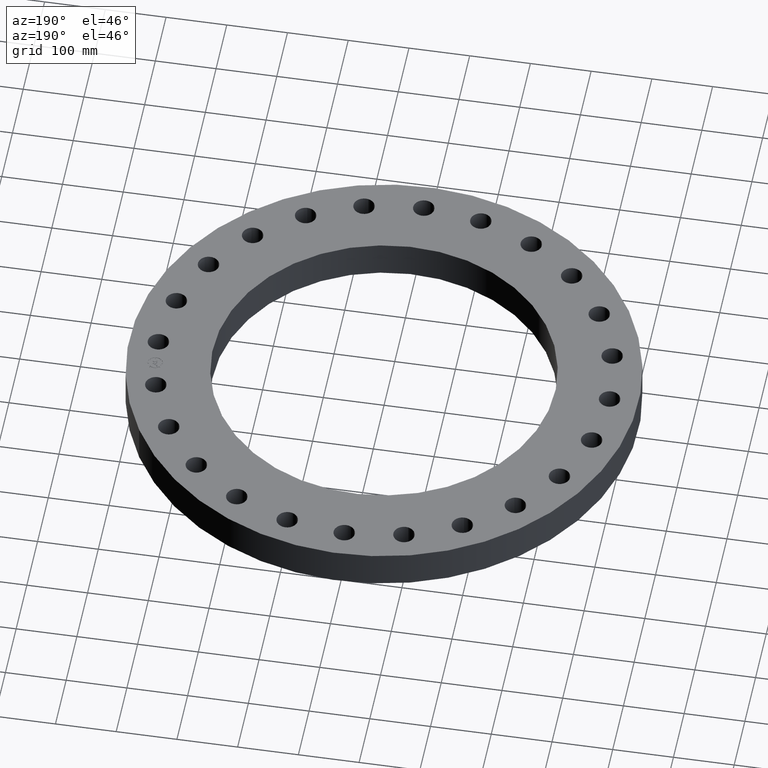
[diagram: clean part render]
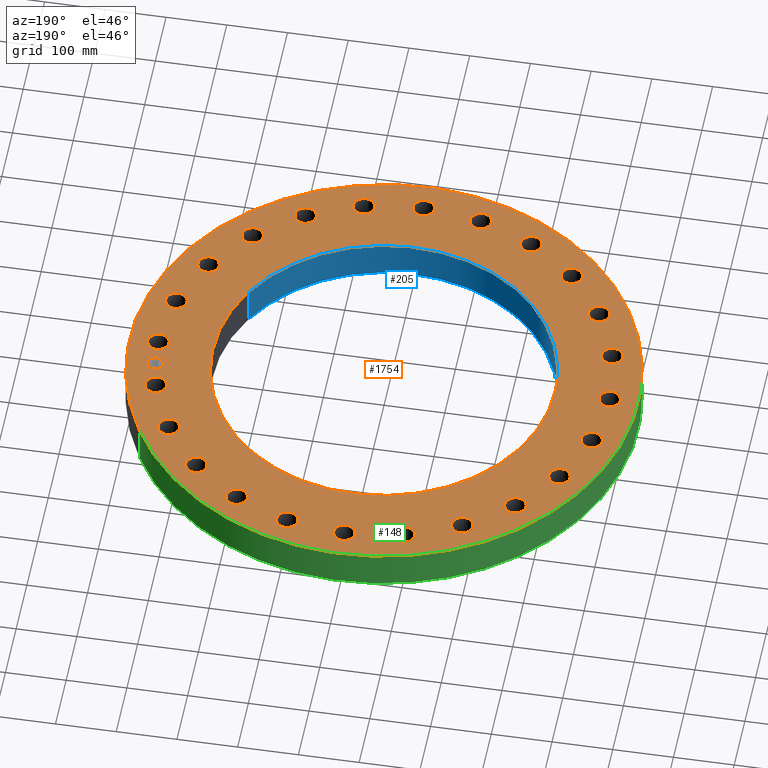
[diagram: same view with three faces highlighted in distinct colors, each labeled with its STEP entity id]
A machine part, auxiliary view with three faces highlighted in distinct colors.
Their STEP definitions:

[orange] entity #1754 — the highlighted planar face has unit normal (0, 0, 1).
#65=AXIS2_PLACEMENT_3D('Circle Axis2P3D',#63,#64,$) ;
#82=AXIS2_PLACEMENT_3D('Circle Axis2P3D',#80,#81,$) ;
#108=AXIS2_PLACEMENT_3D('Circle Axis2P3D',#106,#107,$) ;
#134=AXIS2_PLACEMENT_3D('Circle Axis2P3D',#132,#133,$) ;
#179=AXIS2_PLACEMENT_3D('Circle Axis2P3D',#177,#178,$) ;
#196=AXIS2_PLACEMENT_3D('Circle Axis2P3D',#194,#195,$) ;
#659=AXIS2_PLACEMENT_3D('Circle Axis2P3D',#657,#658,$) ;
#671=AXIS2_PLACEMENT_3D('Circle Axis2P3D',#669,#670,$) ;
#702=AXIS2_PLACEMENT_3D('Circle Axis2P3D',#700,#701,$) ;
#714=AXIS2_PLACEMENT_3D('Circle Axis2P3D',#712,#713,$) ;
#745=AXIS2_PLACEMENT_3D('Circle Axis2P3D',#743,#744,$) ;
#757=AXIS2_PLACEMENT_3D('Circle Axis2P3D',#755,#756,$) ;
#788=AXIS2_PLACEMENT_3D('Circle Axis2P3D',#786,#787,$) ;
#800=AXIS2_PLACEMENT_3D('Circle Axis2P3D',#798,#799,$) ;
#831=AXIS2_PLACEMENT_3D('Circle Axis2P3D',#829,#830,$) ;
#843=AXIS2_PLACEMENT_3D('Circle Axis2P3D',#841,#842,$) ;
#874=AXIS2_PLACEMENT_3D('Circle Axis2P3D',#872,#873,$) ;
#886=AXIS2_PLACEMENT_3D('Circle Axis2P3D',#884,#885,$) ;
#917=AXIS2_PLACEMENT_3D('Circle Axis2P3D',#915,#916,$) ;
#929=AXIS2_PLACEMENT_3D('Circle Axis2P3D',#927,#928,$) ;
#960=AXIS2_PLACEMENT_3D('Circle Axis2P3D',#958,#959,$) ;
#972=AXIS2_PLACEMENT_3D('Circle Axis2P3D',#970,#971,$) ;
#1003=AXIS2_PLACEMENT_3D('Circle Axis2P3D',#1001,#1002,$) ;
#1015=AXIS2_PLACEMENT_3D('Circle Axis2P3D',#1013,#1014,$) ;
#1046=AXIS2_PLACEMENT_3D('Circle Axis2P3D',#1044,#1045,$) ;
#1058=AXIS2_PLACEMENT_3D('Circle Axis2P3D',#1056,#1057,$) ;
#1089=AXIS2_PLACEMENT_3D('Circle Axis2P3D',#1087,#1088,$) ;
#1101=AXIS2_PLACEMENT_3D('Circle Axis2P3D',#1099,#1100,$) ;
#1132=AXIS2_PLACEMENT_3D('Circle Axis2P3D',#1130,#1131,$) ;
#1144=AXIS2_PLACEMENT_3D('Circle Axis2P3D',#1142,#1143,$) ;
#1175=AXIS2_PLACEMENT_3D('Circle Axis2P3D',#1173,#1174,$) ;
#1187=AXIS2_PLACEMENT_3D('Circle Axis2P3D',#1185,#1186,$) ;
#1218=AXIS2_PLACEMENT_3D('Circle Axis2P3D',#1216,#1217,$) ;
#1230=AXIS2_PLACEMENT_3D('Circle Axis2P3D',#1228,#1229,$) ;
#1261=AXIS2_PLACEMENT_3D('Circle Axis2P3D',#1259,#1260,$) ;
#1273=AXIS2_PLACEMENT_3D('Circle Axis2P3D',#1271,#1272,$) ;
#1304=AXIS2_PLACEMENT_3D('Circle Axis2P3D',#1302,#1303,$) ;
#1316=AXIS2_PLACEMENT_3D('Circle Axis2P3D',#1314,#1315,$) ;
#1347=AXIS2_PLACEMENT_3D('Circle Axis2P3D',#1345,#1346,$) ;
#1359=AXIS2_PLACEMENT_3D('Circle Axis2P3D',#1357,#1358,$) ;
#1390=AXIS2_PLACEMENT_3D('Circle Axis2P3D',#1388,#1389,$) ;
#1402=AXIS2_PLACEMENT_3D('Circle Axis2P3D',#1400,#1401,$) ;
#1433=AXIS2_PLACEMENT_3D('Circle Axis2P3D',#1431,#1432,$) ;
#1445=AXIS2_PLACEMENT_3D('Circle Axis2P3D',#1443,#1444,$) ;
#1476=AXIS2_PLACEMENT_3D('Circle Axis2P3D',#1474,#1475,$) ;
#1488=AXIS2_PLACEMENT_3D('Circle Axis2P3D',#1486,#1487,$) ;
#1519=AXIS2_PLACEMENT_3D('Circle Axis2P3D',#1517,#1518,$) ;
#1531=AXIS2_PLACEMENT_3D('Circle Axis2P3D',#1529,#1530,$) ;
#1562=AXIS2_PLACEMENT_3D('Circle Axis2P3D',#1560,#1561,$) ;
#1574=AXIS2_PLACEMENT_3D('Circle Axis2P3D',#1572,#1573,$) ;
#1605=AXIS2_PLACEMENT_3D('Circle Axis2P3D',#1603,#1604,$) ;
#1617=AXIS2_PLACEMENT_3D('Circle Axis2P3D',#1615,#1616,$) ;
#1630=AXIS2_PLACEMENT_3D('Plane Axis2P3D',#1627,#1628,#1629) ;
#1738=AXIS2_PLACEMENT_3D('Circle Axis2P3D',#1736,#1737,$) ;
#1747=AXIS2_PLACEMENT_3D('Circle Axis2P3D',#1745,#1746,$) ;
#46=CARTESIAN_POINT('Vertex',(14.0216619888,0.329605057792,2.50000000001)) ;
#60=CARTESIAN_POINT('Vertex',(15.2283380114,-0.329605057792,2.50000000001)) ;
#63=CARTESIAN_POINT('Axis2P3D Location',(14.6250000001,0.,2.50000000001)) ;
#80=CARTESIAN_POINT('Axis2P3D Location',(14.6250000001,0.,2.50000000001)) ;
#103=CARTESIAN_POINT('Vertex',(14.4801122712,7.910521387,2.50000000001)) ;
#106=CARTESIAN_POINT('Axis2P3D Location',(0.,0.,2.50000000001)) ;
#110=CARTESIAN_POINT('Vertex',(-14.4801122712,-7.910521387,2.50000000001)) ;
#132=CARTESIAN_POINT('Axis2P3D Location',(0.,0.,2.50000000001)) ;
#160=CARTESIAN_POINT('Vertex',(-9.73677852421,5.31922635083,2.50000000001)) ;
#174=CARTESIAN_POINT('Vertex',(9.73677852421,-5.31922635083,2.50000000001)) ;
#177=CARTESIAN_POINT('Axis2P3D Location',(-6.64385432059E-016,-2.09805925913E-016,2.50000000001)) ;
#194=CARTESIAN_POINT('Axis2P3D Location',(-6.64385432059E-016,-2.09805925913E-016,2.50000000001)) ;
#647=CARTESIAN_POINT('Vertex',(13.4585773761,3.94744720448,2.50000000001)) ;
#654=CARTESIAN_POINT('Vertex',(14.794753043,3.6230098648,2.50000000001)) ;
#657=CARTESIAN_POINT('Axis2P3D Location',(14.1266652095,3.78522853464,2.50000000001)) ;
#669=CARTESIAN_POINT('Axis2P3D Location',(14.1266652095,3.78522853464,2.50000000001)) ;
#690=CARTESIAN_POINT('Vertex',(11.9783129566,7.29627734764,2.50000000001)) ;
#697=CARTESIAN_POINT('Vertex',(13.3529301042,7.32872265242,2.50000000001)) ;
#700=CARTESIAN_POINT('Axis2P3D Location',(12.6656215304,7.31250000003,2.50000000001)) ;
#712=CARTESIAN_POINT('Axis2P3D Location',(12.6656215304,7.31250000003,2.50000000001)) ;
#733=CARTESIAN_POINT('Vertex',(9.68174630428,10.1478782472,2.50000000001)) ;
#740=CARTESIAN_POINT('Vertex',(11.0011270455,10.5349951026,2.50000000001)) ;
#743=CARTESIAN_POINT('Axis2P3D Location',(10.3414366749,10.3414366749,2.50000000001)) ;
#755=CARTESIAN_POINT('Axis2P3D Location',(10.3414366749,10.3414366749,2.50000000001)) ;
#776=CARTESIAN_POINT('Vertex',(6.72538464111,12.3079180144,2.50000000001)) ;
#783=CARTESIAN_POINT('Vertex',(7.89961535894,13.0233250464,2.50000000001)) ;
#786=CARTESIAN_POINT('Axis2P3D Location',(7.31250000003,12.6656215304,2.50000000001)) ;
#798=CARTESIAN_POINT('Axis2P3D Location',(7.31250000003,12.6656215304,2.50000000001)) ;
#819=CARTESIAN_POINT('Vertex',(3.31069912888,13.6291935088,2.50000000001)) ;
#826=CARTESIAN_POINT('Vertex',(4.2597579404,14.6241369103,2.50000000001)) ;
#829=CARTESIAN_POINT('Axis2P3D Location',(3.78522853464,14.1266652095,2.50000000001)) ;
#841=CARTESIAN_POINT('Axis2P3D Location',(3.78522853464,14.1266652095,2.50000000001)) ;
#862=CARTESIAN_POINT('Vertex',(-0.329605057792,14.0216619888,2.50000000001)) ;
#869=CARTESIAN_POINT('Vertex',(0.329605057792,15.2283380114,2.50000000001)) ;
#872=CARTESIAN_POINT('Axis2P3D Location',(-1.34240690453E-015,14.6250000001,2.50000000001)) ;
#884=CARTESIAN_POINT('Axis2P3D Location',(-1.34240690453E-015,14.6250000001,2.50000000001)) ;
#905=CARTESIAN_POINT('Vertex',(-3.94744720448,13.4585773761,2.50000000001)) ;
#912=CARTESIAN_POINT('Vertex',(-3.6230098648,14.794753043,2.50000000001)) ;
#915=CARTESIAN_POINT('Axis2P3D Location',(-3.78522853464,14.1266652095,2.50000000001)) ;
#927=CARTESIAN_POINT('Axis2P3D Location',(-3.78522853464,14.1266652095,2.50000000001)) ;
#948=CARTESIAN_POINT('Vertex',(-7.29627734764,11.9783129566,2.50000000001)) ;
#955=CARTESIAN_POINT('Vertex',(-7.32872265242,13.3529301042,2.50000000001)) ;
#958=CARTESIAN_POINT('Axis2P3D Location',(-7.31250000003,12.6656215304,2.50000000001)) ;
#970=CARTESIAN_POINT('Axis2P3D Location',(-7.31250000003,12.6656215304,2.50000000001)) ;
#991=CARTESIAN_POINT('Vertex',(-10.1478782472,9.68174630428,2.50000000001)) ;
#998=CARTESIAN_POINT('Vertex',(-10.5349951026,11.0011270455,2.50000000001)) ;
#1001=CARTESIAN_POINT('Axis2P3D Location',(-10.3414366749,10.3414366749,2.50000000001)) ;
#1013=CARTESIAN_POINT('Axis2P3D Location',(-10.3414366749,10.3414366749,2.50000000001)) ;
#1034=CARTESIAN_POINT('Vertex',(-12.3079180144,6.72538464111,2.50000000001)) ;
#1041=CARTESIAN_POINT('Vertex',(-13.0233250464,7.89961535894,2.50000000001)) ;
#1044=CARTESIAN_POINT('Axis2P3D Location',(-12.6656215304,7.31250000003,2.50000000001)) ;
#1056=CARTESIAN_POINT('Axis2P3D Location',(-12.6656215304,7.31250000003,2.50000000001)) ;
#1077=CARTESIAN_POINT('Vertex',(-13.6291935088,3.31069912888,2.50000000001)) ;
#1084=CARTESIAN_POINT('Vertex',(-14.6241369103,4.2597579404,2.50000000001)) ;
#1087=CARTESIAN_POINT('Axis2P3D Location',(-14.1266652095,3.78522853464,2.50000000001)) ;
#1099=CARTESIAN_POINT('Axis2P3D Location',(-14.1266652095,3.78522853464,2.50000000001)) ;
#1120=CARTESIAN_POINT('Vertex',(-14.0216619888,-0.329605057792,2.50000000001)) ;
#1127=CARTESIAN_POINT('Vertex',(-15.2283380114,0.329605057792,2.50000000001)) ;
#1130=CARTESIAN_POINT('Axis2P3D Location',(-14.6250000001,1.79104594376E-015,2.50000000001)) ;
#1142=CARTESIAN_POINT('Axis2P3D Location',(-14.6250000001,1.79104594376E-015,2.50000000001)) ;
#1163=CARTESIAN_POINT('Vertex',(-13.4585773761,-3.94744720448,2.50000000001)) ;
#1170=CARTESIAN_POINT('Vertex',(-14.794753043,-3.6230098648,2.50000000001)) ;
#1173=CARTESIAN_POINT('Axis2P3D Location',(-14.1266652095,-3.78522853464,2.50000000001)) ;
#1185=CARTESIAN_POINT('Axis2P3D Location',(-14.1266652095,-3.78522853464,2.50000000001)) ;
#1206=CARTESIAN_POINT('Vertex',(-11.9783129566,-7.29627734764,2.50000000001)) ;
#1213=CARTESIAN_POINT('Vertex',(-13.3529301042,-7.32872265242,2.50000000001)) ;
#1216=CARTESIAN_POINT('Axis2P3D Location',(-12.6656215304,-7.31250000003,2.50000000001)) ;
#1228=CARTESIAN_POINT('Axis2P3D Location',(-12.6656215304,-7.31250000003,2.50000000001)) ;
#1249=CARTESIAN_POINT('Vertex',(-9.68174630428,-10.1478782472,2.50000000001)) ;
#1256=CARTESIAN_POINT('Vertex',(-11.0011270455,-10.5349951026,2.50000000001)) ;
#1259=CARTESIAN_POINT('Axis2P3D Location',(-10.3414366749,-10.3414366749,2.50000000001)) ;
#1271=CARTESIAN_POINT('Axis2P3D Location',(-10.3414366749,-10.3414366749,2.50000000001)) ;
#1292=CARTESIAN_POINT('Vertex',(-6.72538464111,-12.3079180144,2.50000000001)) ;
#1299=CARTESIAN_POINT('Vertex',(-7.89961535894,-13.0233250464,2.50000000001)) ;
#1302=CARTESIAN_POINT('Axis2P3D Location',(-7.31250000003,-12.6656215304,2.50000000001)) ;
#1314=CARTESIAN_POINT('Axis2P3D Location',(-7.31250000003,-12.6656215304,2.50000000001)) ;
#1335=CARTESIAN_POINT('Vertex',(-3.31069912888,-13.6291935088,2.50000000001)) ;
#1342=CARTESIAN_POINT('Vertex',(-4.2597579404,-14.6241369103,2.50000000001)) ;
#1345=CARTESIAN_POINT('Axis2P3D Location',(-3.78522853464,-14.1266652095,2.50000000001)) ;
#1357=CARTESIAN_POINT('Axis2P3D Location',(-3.78522853464,-14.1266652095,2.50000000001)) ;
#1378=CARTESIAN_POINT('Vertex',(0.329605057792,-14.0216619888,2.50000000001)) ;
#1385=CARTESIAN_POINT('Vertex',(-0.329605057792,-15.2283380114,2.50000000001)) ;
#1388=CARTESIAN_POINT('Axis2P3D Location',(-2.68656891564E-015,-14.6250000001,2.50000000001)) ;
#1400=CARTESIAN_POINT('Axis2P3D Location',(-2.68656891564E-015,-14.6250000001,2.50000000001)) ;
#1421=CARTESIAN_POINT('Vertex',(3.94744720448,-13.4585773761,2.50000000001)) ;
#1428=CARTESIAN_POINT('Vertex',(3.6230098648,-14.794753043,2.50000000001)) ;
#1431=CARTESIAN_POINT('Axis2P3D Location',(3.78522853464,-14.1266652095,2.50000000001)) ;
#1443=CARTESIAN_POINT('Axis2P3D Location',(3.78522853464,-14.1266652095,2.50000000001)) ;
#1464=CARTESIAN_POINT('Vertex',(7.29627734764,-11.9783129566,2.50000000001)) ;
#1471=CARTESIAN_POINT('Vertex',(7.32872265242,-13.3529301042,2.50000000001)) ;
#1474=CARTESIAN_POINT('Axis2P3D Location',(7.31250000003,-12.6656215304,2.50000000001)) ;
#1486=CARTESIAN_POINT('Axis2P3D Location',(7.31250000003,-12.6656215304,2.50000000001)) ;
#1507=CARTESIAN_POINT('Vertex',(10.1478782472,-9.68174630428,2.50000000001)) ;
#1514=CARTESIAN_POINT('Vertex',(10.5349951026,-11.0011270455,2.50000000001)) ;
#1517=CARTESIAN_POINT('Axis2P3D Location',(10.3414366749,-10.3414366749,2.50000000001)) ;
#1529=CARTESIAN_POINT('Axis2P3D Location',(10.3414366749,-10.3414366749,2.50000000001)) ;
#1550=CARTESIAN_POINT('Vertex',(12.3079180144,-6.72538464111,2.50000000001)) ;
#1557=CARTESIAN_POINT('Vertex',(13.0233250464,-7.89961535894,2.50000000001)) ;
#1560=CARTESIAN_POINT('Axis2P3D Location',(12.6656215304,-7.31250000003,2.50000000001)) ;
#1572=CARTESIAN_POINT('Axis2P3D Location',(12.6656215304,-7.31250000003,2.50000000001)) ;
#1593=CARTESIAN_POINT('Vertex',(13.6291935088,-3.31069912888,2.50000000001)) ;
#1600=CARTESIAN_POINT('Vertex',(14.6241369103,-4.2597579404,2.50000000001)) ;
#1603=CARTESIAN_POINT('Axis2P3D Location',(14.1266652095,-3.78522853464,2.50000000001)) ;
#1615=CARTESIAN_POINT('Axis2P3D Location',(14.1266652095,-3.78522853464,2.50000000001)) ;
#1627=CARTESIAN_POINT('Axis2P3D Location',(16.5000000001,0.,2.50000000001)) ;
#1736=CARTESIAN_POINT('Axis2P3D Location',(14.4998810977,1.90894556123,2.50000000001)) ;
#1740=CARTESIAN_POINT('Vertex',(14.4346180022,2.40466798696,2.50000000001)) ;
#1742=CARTESIAN_POINT('Vertex',(14.5651441931,1.41322313549,2.50000000001)) ;
#1745=CARTESIAN_POINT('Axis2P3D Location',(14.4998810977,1.90894556123,2.50000000001)) ;
#64=DIRECTION('Axis2P3D Direction',(0.,-0.,-0.0393700787402)) ;
#81=DIRECTION('Axis2P3D Direction',(0.,-0.,-0.0393700787402)) ;
#107=DIRECTION('Axis2P3D Direction',(0.,0.,0.0393700787402)) ;
#133=DIRECTION('Axis2P3D Direction',(0.,0.,0.0393700787402)) ;
#178=DIRECTION('Axis2P3D Direction',(0.,-0.,-0.0393700787402)) ;
#195=DIRECTION('Axis2P3D Direction',(0.,-0.,-0.0393700787402)) ;
#658=DIRECTION('Axis2P3D Direction',(0.,0.,-0.0393700787402)) ;
#670=DIRECTION('Axis2P3D Direction',(0.,0.,-0.0393700787402)) ;
#701=DIRECTION('Axis2P3D Direction',(0.,0.,-0.0393700787402)) ;
#713=DIRECTION('Axis2P3D Direction',(0.,0.,-0.0393700787402)) ;
#744=DIRECTION('Axis2P3D Direction',(0.,0.,-0.0393700787402)) ;
#756=DIRECTION('Axis2P3D Direction',(0.,0.,-0.0393700787402)) ;
#787=DIRECTION('Axis2P3D Direction',(0.,0.,-0.0393700787402)) ;
#799=DIRECTION('Axis2P3D Direction',(0.,0.,-0.0393700787402)) ;
#830=DIRECTION('Axis2P3D Direction',(0.,0.,-0.0393700787402)) ;
#842=DIRECTION('Axis2P3D Direction',(0.,0.,-0.0393700787402)) ;
#873=DIRECTION('Axis2P3D Direction',(0.,0.,-0.0393700787402)) ;
#885=DIRECTION('Axis2P3D Direction',(0.,0.,-0.0393700787402)) ;
#916=DIRECTION('Axis2P3D Direction',(0.,0.,-0.0393700787402)) ;
#928=DIRECTION('Axis2P3D Direction',(0.,0.,-0.0393700787402)) ;
#959=DIRECTION('Axis2P3D Direction',(0.,0.,-0.0393700787402)) ;
#971=DIRECTION('Axis2P3D Direction',(0.,0.,-0.0393700787402)) ;
#1002=DIRECTION('Axis2P3D Direction',(0.,0.,-0.0393700787402)) ;
#1014=DIRECTION('Axis2P3D Direction',(0.,0.,-0.0393700787402)) ;
#1045=DIRECTION('Axis2P3D Direction',(0.,0.,-0.0393700787402)) ;
#1057=DIRECTION('Axis2P3D Direction',(0.,0.,-0.0393700787402)) ;
#1088=DIRECTION('Axis2P3D Direction',(0.,0.,-0.0393700787402)) ;
#1100=DIRECTION('Axis2P3D Direction',(0.,0.,-0.0393700787402)) ;
#1131=DIRECTION('Axis2P3D Direction',(0.,0.,-0.0393700787402)) ;
#1143=DIRECTION('Axis2P3D Direction',(0.,0.,-0.0393700787402)) ;
#1174=DIRECTION('Axis2P3D Direction',(-0.,0.,-0.0393700787402)) ;
#1186=DIRECTION('Axis2P3D Direction',(-0.,0.,-0.0393700787402)) ;
#1217=DIRECTION('Axis2P3D Direction',(-0.,0.,-0.0393700787402)) ;
#1229=DIRECTION('Axis2P3D Direction',(-0.,0.,-0.0393700787402)) ;
#1260=DIRECTION('Axis2P3D Direction',(-0.,0.,-0.0393700787402)) ;
#1272=DIRECTION('Axis2P3D Direction',(-0.,0.,-0.0393700787402)) ;
#1303=DIRECTION('Axis2P3D Direction',(-0.,0.,-0.0393700787402)) ;
#1315=DIRECTION('Axis2P3D Direction',(-0.,0.,-0.0393700787402)) ;
#1346=DIRECTION('Axis2P3D Direction',(-0.,0.,-0.0393700787402)) ;
#1358=DIRECTION('Axis2P3D Direction',(-0.,0.,-0.0393700787402)) ;
#1389=DIRECTION('Axis2P3D Direction',(-0.,0.,-0.0393700787402)) ;
#1401=DIRECTION('Axis2P3D Direction',(-0.,0.,-0.0393700787402)) ;
#1432=DIRECTION('Axis2P3D Direction',(0.,-0.,-0.0393700787402)) ;
#1444=DIRECTION('Axis2P3D Direction',(0.,-0.,-0.0393700787402)) ;
#1475=DIRECTION('Axis2P3D Direction',(0.,-0.,-0.0393700787402)) ;
#1487=DIRECTION('Axis2P3D Direction',(0.,-0.,-0.0393700787402)) ;
#1518=DIRECTION('Axis2P3D Direction',(0.,-0.,-0.0393700787402)) ;
#1530=DIRECTION('Axis2P3D Direction',(0.,-0.,-0.0393700787402)) ;
#1561=DIRECTION('Axis2P3D Direction',(0.,-0.,-0.0393700787402)) ;
#1573=DIRECTION('Axis2P3D Direction',(0.,-0.,-0.0393700787402)) ;
#1604=DIRECTION('Axis2P3D Direction',(0.,-0.,-0.0393700787402)) ;
#1616=DIRECTION('Axis2P3D Direction',(0.,-0.,-0.0393700787402)) ;
#1628=DIRECTION('Axis2P3D Direction',(0.,0.,0.0393700787402)) ;
#1629=DIRECTION('Axis2P3D XDirection',(0.0393700787402,0.,0.)) ;
#1737=DIRECTION('Axis2P3D Direction',(0.,0.,0.0393700787402)) ;
#1746=DIRECTION('Axis2P3D Direction',(0.,0.,0.0393700787402)) ;
#1633=ORIENTED_EDGE('',*,*,#112,.T.) ;
#1634=ORIENTED_EDGE('',*,*,#136,.T.) ;
#1637=ORIENTED_EDGE('',*,*,#84,.F.) ;
#1638=ORIENTED_EDGE('',*,*,#67,.F.) ;
#1641=ORIENTED_EDGE('',*,*,#198,.F.) ;
#1642=ORIENTED_EDGE('',*,*,#181,.F.) ;
#1645=ORIENTED_EDGE('',*,*,#661,.F.) ;
#1646=ORIENTED_EDGE('',*,*,#673,.F.) ;
#1649=ORIENTED_EDGE('',*,*,#704,.F.) ;
#1650=ORIENTED_EDGE('',*,*,#716,.F.) ;
#1653=ORIENTED_EDGE('',*,*,#747,.F.) ;
#1654=ORIENTED_EDGE('',*,*,#759,.F.) ;
#1657=ORIENTED_EDGE('',*,*,#790,.F.) ;
#1658=ORIENTED_EDGE('',*,*,#802,.F.) ;
#1661=ORIENTED_EDGE('',*,*,#833,.F.) ;
#1662=ORIENTED_EDGE('',*,*,#845,.F.) ;
#1665=ORIENTED_EDGE('',*,*,#876,.F.) ;
#1666=ORIENTED_EDGE('',*,*,#888,.F.) ;
#1669=ORIENTED_EDGE('',*,*,#919,.F.) ;
#1670=ORIENTED_EDGE('',*,*,#931,.F.) ;
#1673=ORIENTED_EDGE('',*,*,#962,.F.) ;
#1674=ORIENTED_EDGE('',*,*,#974,.F.) ;
#1677=ORIENTED_EDGE('',*,*,#1005,.F.) ;
#1678=ORIENTED_EDGE('',*,*,#1017,.F.) ;
#1681=ORIENTED_EDGE('',*,*,#1048,.F.) ;
#1682=ORIENTED_EDGE('',*,*,#1060,.F.) ;
#1685=ORIENTED_EDGE('',*,*,#1091,.F.) ;
#1686=ORIENTED_EDGE('',*,*,#1103,.F.) ;
#1689=ORIENTED_EDGE('',*,*,#1134,.F.) ;
#1690=ORIENTED_EDGE('',*,*,#1146,.F.) ;
#1693=ORIENTED_EDGE('',*,*,#1177,.F.) ;
#1694=ORIENTED_EDGE('',*,*,#1189,.F.) ;
#1697=ORIENTED_EDGE('',*,*,#1220,.F.) ;
#1698=ORIENTED_EDGE('',*,*,#1232,.F.) ;
#1701=ORIENTED_EDGE('',*,*,#1263,.F.) ;
#1702=ORIENTED_EDGE('',*,*,#1275,.F.) ;
#1705=ORIENTED_EDGE('',*,*,#1306,.F.) ;
#1706=ORIENTED_EDGE('',*,*,#1318,.F.) ;
#1709=ORIENTED_EDGE('',*,*,#1349,.F.) ;
#1710=ORIENTED_EDGE('',*,*,#1361,.F.) ;
#1713=ORIENTED_EDGE('',*,*,#1392,.F.) ;
#1714=ORIENTED_EDGE('',*,*,#1404,.F.) ;
#1717=ORIENTED_EDGE('',*,*,#1435,.F.) ;
#1718=ORIENTED_EDGE('',*,*,#1447,.F.) ;
#1721=ORIENTED_EDGE('',*,*,#1478,.F.) ;
#1722=ORIENTED_EDGE('',*,*,#1490,.F.) ;
#1725=ORIENTED_EDGE('',*,*,#1521,.F.) ;
#1726=ORIENTED_EDGE('',*,*,#1533,.F.) ;
#1729=ORIENTED_EDGE('',*,*,#1564,.F.) ;
#1730=ORIENTED_EDGE('',*,*,#1576,.F.) ;
#1733=ORIENTED_EDGE('',*,*,#1607,.F.) ;
#1734=ORIENTED_EDGE('',*,*,#1619,.F.) ;
#1751=ORIENTED_EDGE('',*,*,#1744,.F.) ;
#1752=ORIENTED_EDGE('',*,*,#1749,.F.) ;
#1639=FACE_BOUND('',#1636,.T.) ;
#1643=FACE_BOUND('',#1640,.T.) ;
#1647=FACE_BOUND('',#1644,.T.) ;
#1651=FACE_BOUND('',#1648,.T.) ;
#1655=FACE_BOUND('',#1652,.T.) ;
#1659=FACE_BOUND('',#1656,.T.) ;
#1663=FACE_BOUND('',#1660,.T.) ;
#1667=FACE_BOUND('',#1664,.T.) ;
#1671=FACE_BOUND('',#1668,.T.) ;
#1675=FACE_BOUND('',#1672,.T.) ;
#1679=FACE_BOUND('',#1676,.T.) ;
#1683=FACE_BOUND('',#1680,.T.) ;
#1687=FACE_BOUND('',#1684,.T.) ;
#1691=FACE_BOUND('',#1688,.T.) ;
#1695=FACE_BOUND('',#1692,.T.) ;
#1699=FACE_BOUND('',#1696,.T.) ;
#1703=FACE_BOUND('',#1700,.T.) ;
#1707=FACE_BOUND('',#1704,.T.) ;
#1711=FACE_BOUND('',#1708,.T.) ;
#1715=FACE_BOUND('',#1712,.T.) ;
#1719=FACE_BOUND('',#1716,.T.) ;
#1723=FACE_BOUND('',#1720,.T.) ;
#1727=FACE_BOUND('',#1724,.T.) ;
#1731=FACE_BOUND('',#1728,.T.) ;
#1735=FACE_BOUND('',#1732,.T.) ;
#1753=FACE_BOUND('',#1750,.T.) ;
#1754=ADVANCED_FACE('PartBody',(#1635,#1639,#1643,#1647,#1651,#1655,#1659,#1663,#1667,#1671,#1675,#1679,#1683,#1687,#1691,#1695,#1699,#1703,#1707,#1711,#1715,#1719,#1723,#1727,#1731,#1735,#1753),#1631,.T.) ;
#66=CIRCLE('generated circle',#65,0.687500000003) ;
#83=CIRCLE('generated circle',#82,0.687500000003) ;
#109=CIRCLE('generated circle',#108,16.5000000001) ;
#135=CIRCLE('generated circle',#134,16.5000000001) ;
#180=CIRCLE('generated circle',#179,11.095) ;
#197=CIRCLE('generated circle',#196,11.095) ;
#660=CIRCLE('generated circle',#659,0.687500000003) ;
#672=CIRCLE('generated circle',#671,0.687500000003) ;
#703=CIRCLE('generated circle',#702,0.687500000003) ;
#715=CIRCLE('generated circle',#714,0.687500000003) ;
#746=CIRCLE('generated circle',#745,0.687500000003) ;
#758=CIRCLE('generated circle',#757,0.687500000003) ;
#789=CIRCLE('generated circle',#788,0.687500000003) ;
#801=CIRCLE('generated circle',#800,0.687500000003) ;
#832=CIRCLE('generated circle',#831,0.687500000003) ;
#844=CIRCLE('generated circle',#843,0.687500000003) ;
#875=CIRCLE('generated circle',#874,0.687500000003) ;
#887=CIRCLE('generated circle',#886,0.687500000003) ;
#918=CIRCLE('generated circle',#917,0.687500000003) ;
#930=CIRCLE('generated circle',#929,0.687500000003) ;
#961=CIRCLE('generated circle',#960,0.687500000003) ;
#973=CIRCLE('generated circle',#972,0.687500000003) ;
#1004=CIRCLE('generated circle',#1003,0.687500000003) ;
#1016=CIRCLE('generated circle',#1015,0.687500000003) ;
#1047=CIRCLE('generated circle',#1046,0.687500000003) ;
#1059=CIRCLE('generated circle',#1058,0.687500000003) ;
#1090=CIRCLE('generated circle',#1089,0.687500000003) ;
#1102=CIRCLE('generated circle',#1101,0.687500000003) ;
#1133=CIRCLE('generated circle',#1132,0.687500000003) ;
#1145=CIRCLE('generated circle',#1144,0.687500000003) ;
#1176=CIRCLE('generated circle',#1175,0.687500000003) ;
#1188=CIRCLE('generated circle',#1187,0.687500000003) ;
#1219=CIRCLE('generated circle',#1218,0.687500000003) ;
#1231=CIRCLE('generated circle',#1230,0.687500000003) ;
#1262=CIRCLE('generated circle',#1261,0.687500000003) ;
#1274=CIRCLE('generated circle',#1273,0.687500000003) ;
#1305=CIRCLE('generated circle',#1304,0.687500000003) ;
#1317=CIRCLE('generated circle',#1316,0.687500000003) ;
#1348=CIRCLE('generated circle',#1347,0.687500000003) ;
#1360=CIRCLE('generated circle',#1359,0.687500000003) ;
#1391=CIRCLE('generated circle',#1390,0.687500000003) ;
#1403=CIRCLE('generated circle',#1402,0.687500000003) ;
#1434=CIRCLE('generated circle',#1433,0.687500000003) ;
#1446=CIRCLE('generated circle',#1445,0.687500000003) ;
#1477=CIRCLE('generated circle',#1476,0.687500000003) ;
#1489=CIRCLE('generated circle',#1488,0.687500000003) ;
#1520=CIRCLE('generated circle',#1519,0.687500000003) ;
#1532=CIRCLE('generated circle',#1531,0.687500000003) ;
#1563=CIRCLE('generated circle',#1562,0.687500000003) ;
#1575=CIRCLE('generated circle',#1574,0.687500000003) ;
#1606=CIRCLE('generated circle',#1605,0.687500000003) ;
#1618=CIRCLE('generated circle',#1617,0.687500000003) ;
#1739=CIRCLE('generated circle',#1738,0.499999995002) ;
#1748=CIRCLE('generated circle',#1747,0.499999995002) ;
#67=EDGE_CURVE('',#61,#47,#66,.F.) ;
#84=EDGE_CURVE('',#47,#61,#83,.F.) ;
#112=EDGE_CURVE('',#111,#104,#109,.T.) ;
#136=EDGE_CURVE('',#104,#111,#135,.T.) ;
#181=EDGE_CURVE('',#175,#161,#180,.F.) ;
#198=EDGE_CURVE('',#161,#175,#197,.F.) ;
#661=EDGE_CURVE('',#655,#648,#660,.F.) ;
#673=EDGE_CURVE('',#648,#655,#672,.F.) ;
#704=EDGE_CURVE('',#698,#691,#703,.F.) ;
#716=EDGE_CURVE('',#691,#698,#715,.F.) ;
#747=EDGE_CURVE('',#741,#734,#746,.F.) ;
#759=EDGE_CURVE('',#734,#741,#758,.F.) ;
#790=EDGE_CURVE('',#784,#777,#789,.F.) ;
#802=EDGE_CURVE('',#777,#784,#801,.F.) ;
#833=EDGE_CURVE('',#827,#820,#832,.F.) ;
#845=EDGE_CURVE('',#820,#827,#844,.F.) ;
#876=EDGE_CURVE('',#870,#863,#875,.F.) ;
#888=EDGE_CURVE('',#863,#870,#887,.F.) ;
#919=EDGE_CURVE('',#913,#906,#918,.F.) ;
#931=EDGE_CURVE('',#906,#913,#930,.F.) ;
#962=EDGE_CURVE('',#956,#949,#961,.F.) ;
#974=EDGE_CURVE('',#949,#956,#973,.F.) ;
#1005=EDGE_CURVE('',#999,#992,#1004,.F.) ;
#1017=EDGE_CURVE('',#992,#999,#1016,.F.) ;
#1048=EDGE_CURVE('',#1042,#1035,#1047,.F.) ;
#1060=EDGE_CURVE('',#1035,#1042,#1059,.F.) ;
#1091=EDGE_CURVE('',#1085,#1078,#1090,.F.) ;
#1103=EDGE_CURVE('',#1078,#1085,#1102,.F.) ;
#1134=EDGE_CURVE('',#1128,#1121,#1133,.F.) ;
#1146=EDGE_CURVE('',#1121,#1128,#1145,.F.) ;
#1177=EDGE_CURVE('',#1171,#1164,#1176,.F.) ;
#1189=EDGE_CURVE('',#1164,#1171,#1188,.F.) ;
#1220=EDGE_CURVE('',#1214,#1207,#1219,.F.) ;
#1232=EDGE_CURVE('',#1207,#1214,#1231,.F.) ;
#1263=EDGE_CURVE('',#1257,#1250,#1262,.F.) ;
#1275=EDGE_CURVE('',#1250,#1257,#1274,.F.) ;
#1306=EDGE_CURVE('',#1300,#1293,#1305,.F.) ;
#1318=EDGE_CURVE('',#1293,#1300,#1317,.F.) ;
#1349=EDGE_CURVE('',#1343,#1336,#1348,.F.) ;
#1361=EDGE_CURVE('',#1336,#1343,#1360,.F.) ;
#1392=EDGE_CURVE('',#1386,#1379,#1391,.F.) ;
#1404=EDGE_CURVE('',#1379,#1386,#1403,.F.) ;
#1435=EDGE_CURVE('',#1429,#1422,#1434,.F.) ;
#1447=EDGE_CURVE('',#1422,#1429,#1446,.F.) ;
#1478=EDGE_CURVE('',#1472,#1465,#1477,.F.) ;
#1490=EDGE_CURVE('',#1465,#1472,#1489,.F.) ;
#1521=EDGE_CURVE('',#1515,#1508,#1520,.F.) ;
#1533=EDGE_CURVE('',#1508,#1515,#1532,.F.) ;
#1564=EDGE_CURVE('',#1558,#1551,#1563,.F.) ;
#1576=EDGE_CURVE('',#1551,#1558,#1575,.F.) ;
#1607=EDGE_CURVE('',#1601,#1594,#1606,.F.) ;
#1619=EDGE_CURVE('',#1594,#1601,#1618,.F.) ;
#1744=EDGE_CURVE('',#1741,#1743,#1739,.T.) ;
#1749=EDGE_CURVE('',#1743,#1741,#1748,.T.) ;
#1632=EDGE_LOOP('',(#1633,#1634)) ;
#1636=EDGE_LOOP('',(#1637,#1638)) ;
#1640=EDGE_LOOP('',(#1641,#1642)) ;
#1644=EDGE_LOOP('',(#1645,#1646)) ;
#1648=EDGE_LOOP('',(#1649,#1650)) ;
#1652=EDGE_LOOP('',(#1653,#1654)) ;
#1656=EDGE_LOOP('',(#1657,#1658)) ;
#1660=EDGE_LOOP('',(#1661,#1662)) ;
#1664=EDGE_LOOP('',(#1665,#1666)) ;
#1668=EDGE_LOOP('',(#1669,#1670)) ;
#1672=EDGE_LOOP('',(#1673,#1674)) ;
#1676=EDGE_LOOP('',(#1677,#1678)) ;
#1680=EDGE_LOOP('',(#1681,#1682)) ;
#1684=EDGE_LOOP('',(#1685,#1686)) ;
#1688=EDGE_LOOP('',(#1689,#1690)) ;
#1692=EDGE_LOOP('',(#1693,#1694)) ;
#1696=EDGE_LOOP('',(#1697,#1698)) ;
#1700=EDGE_LOOP('',(#1701,#1702)) ;
#1704=EDGE_LOOP('',(#1705,#1706)) ;
#1708=EDGE_LOOP('',(#1709,#1710)) ;
#1712=EDGE_LOOP('',(#1713,#1714)) ;
#1716=EDGE_LOOP('',(#1717,#1718)) ;
#1720=EDGE_LOOP('',(#1721,#1722)) ;
#1724=EDGE_LOOP('',(#1725,#1726)) ;
#1728=EDGE_LOOP('',(#1729,#1730)) ;
#1732=EDGE_LOOP('',(#1733,#1734)) ;
#1750=EDGE_LOOP('',(#1751,#1752)) ;
#1635=FACE_OUTER_BOUND('',#1632,.T.) ;
#1631=PLANE('',#1630) ;
#47=VERTEX_POINT('',#46) ;
#61=VERTEX_POINT('',#60) ;
#104=VERTEX_POINT('',#103) ;
#111=VERTEX_POINT('',#110) ;
#161=VERTEX_POINT('',#160) ;
#175=VERTEX_POINT('',#174) ;
#648=VERTEX_POINT('',#647) ;
#655=VERTEX_POINT('',#654) ;
#691=VERTEX_POINT('',#690) ;
#698=VERTEX_POINT('',#697) ;
#734=VERTEX_POINT('',#733) ;
#741=VERTEX_POINT('',#740) ;
#777=VERTEX_POINT('',#776) ;
#784=VERTEX_POINT('',#783) ;
#820=VERTEX_POINT('',#819) ;
#827=VERTEX_POINT('',#826) ;
#863=VERTEX_POINT('',#862) ;
#870=VERTEX_POINT('',#869) ;
#906=VERTEX_POINT('',#905) ;
#913=VERTEX_POINT('',#912) ;
#949=VERTEX_POINT('',#948) ;
#956=VERTEX_POINT('',#955) ;
#992=VERTEX_POINT('',#991) ;
#999=VERTEX_POINT('',#998) ;
#1035=VERTEX_POINT('',#1034) ;
#1042=VERTEX_POINT('',#1041) ;
#1078=VERTEX_POINT('',#1077) ;
#1085=VERTEX_POINT('',#1084) ;
#1121=VERTEX_POINT('',#1120) ;
#1128=VERTEX_POINT('',#1127) ;
#1164=VERTEX_POINT('',#1163) ;
#1171=VERTEX_POINT('',#1170) ;
#1207=VERTEX_POINT('',#1206) ;
#1214=VERTEX_POINT('',#1213) ;
#1250=VERTEX_POINT('',#1249) ;
#1257=VERTEX_POINT('',#1256) ;
#1293=VERTEX_POINT('',#1292) ;
#1300=VERTEX_POINT('',#1299) ;
#1336=VERTEX_POINT('',#1335) ;
#1343=VERTEX_POINT('',#1342) ;
#1379=VERTEX_POINT('',#1378) ;
#1386=VERTEX_POINT('',#1385) ;
#1422=VERTEX_POINT('',#1421) ;
#1429=VERTEX_POINT('',#1428) ;
#1465=VERTEX_POINT('',#1464) ;
#1472=VERTEX_POINT('',#1471) ;
#1508=VERTEX_POINT('',#1507) ;
#1515=VERTEX_POINT('',#1514) ;
#1551=VERTEX_POINT('',#1550) ;
#1558=VERTEX_POINT('',#1557) ;
#1594=VERTEX_POINT('',#1593) ;
#1601=VERTEX_POINT('',#1600) ;
#1741=VERTEX_POINT('',#1740) ;
#1743=VERTEX_POINT('',#1742) ;

[blue] entity #205 — the highlighted cylindrical surface (partial cylindrical patch) has radius 281.813 mm, axis along (0, -0, -1).
#152=AXIS2_PLACEMENT_3D('Cylinder Axis2P3D',#149,#150,#151) ;
#191=AXIS2_PLACEMENT_3D('Circle Axis2P3D',#189,#190,$) ;
#196=AXIS2_PLACEMENT_3D('Circle Axis2P3D',#194,#195,$) ;
#149=CARTESIAN_POINT('Axis2P3D Location',(-6.64385432059E-016,-2.09805925913E-016,2.49606299214)) ;
#154=CARTESIAN_POINT('Line Origine',(-9.73677852421,5.31922635083,1.25000000001)) ;
#158=CARTESIAN_POINT('Vertex',(-9.73677852421,5.31922635083,0.)) ;
#160=CARTESIAN_POINT('Vertex',(-9.73677852421,5.31922635083,2.50000000001)) ;
#167=CARTESIAN_POINT('Vertex',(9.73677852421,-5.31922635083,0.)) ;
#170=CARTESIAN_POINT('Line Origine',(9.73677852421,-5.31922635083,1.25000000001)) ;
#174=CARTESIAN_POINT('Vertex',(9.73677852421,-5.31922635083,2.50000000001)) ;
#189=CARTESIAN_POINT('Axis2P3D Location',(-6.64385432059E-016,-2.09805925913E-016,0.)) ;
#194=CARTESIAN_POINT('Axis2P3D Location',(-6.64385432059E-016,-2.09805925913E-016,2.50000000001)) ;
#150=DIRECTION('Axis2P3D Direction',(0.,-0.,-0.0393700787402)) ;
#151=DIRECTION('Axis2P3D XDirection',(0.0345504945626,-0.0188750212049,0.)) ;
#155=DIRECTION('Vector Direction',(0.,0.,-0.0393700787402)) ;
#171=DIRECTION('Vector Direction',(0.,0.,-0.0393700787402)) ;
#190=DIRECTION('Axis2P3D Direction',(0.,-0.,-0.0393700787402)) ;
#195=DIRECTION('Axis2P3D Direction',(0.,-0.,-0.0393700787402)) ;
#156=VECTOR('Line Direction',#155,0.0393700787402) ;
#172=VECTOR('Line Direction',#171,0.0393700787402) ;
#200=ORIENTED_EDGE('',*,*,#176,.F.) ;
#201=ORIENTED_EDGE('',*,*,#193,.F.) ;
#202=ORIENTED_EDGE('',*,*,#162,.T.) ;
#203=ORIENTED_EDGE('',*,*,#198,.T.) ;
#205=ADVANCED_FACE('PartBody',(#204),#153,.F.) ;
#192=CIRCLE('generated circle',#191,11.095) ;
#197=CIRCLE('generated circle',#196,11.095) ;
#153=CYLINDRICAL_SURFACE('generated cylinder',#152,11.095) ;
#162=EDGE_CURVE('',#159,#161,#157,.F.) ;
#176=EDGE_CURVE('',#168,#175,#173,.F.) ;
#193=EDGE_CURVE('',#159,#168,#192,.F.) ;
#198=EDGE_CURVE('',#161,#175,#197,.F.) ;
#199=EDGE_LOOP('',(#200,#201,#202,#203)) ;
#204=FACE_OUTER_BOUND('',#199,.T.) ;
#157=LINE('Line',#154,#156) ;
#173=LINE('Line',#170,#172) ;
#159=VERTEX_POINT('',#158) ;
#161=VERTEX_POINT('',#160) ;
#168=VERTEX_POINT('',#167) ;
#175=VERTEX_POINT('',#174) ;

[green] entity #148 — the highlighted cylindrical surface (partial cylindrical patch) has radius 419.1 mm, axis along (0, 0, 1).
#95=AXIS2_PLACEMENT_3D('Cylinder Axis2P3D',#92,#93,#94) ;
#134=AXIS2_PLACEMENT_3D('Circle Axis2P3D',#132,#133,$) ;
#139=AXIS2_PLACEMENT_3D('Circle Axis2P3D',#137,#138,$) ;
#92=CARTESIAN_POINT('Axis2P3D Location',(0.,0.,1.25000000001)) ;
#97=CARTESIAN_POINT('Line Origine',(14.4801122712,7.910521387,1.25000000001)) ;
#101=CARTESIAN_POINT('Vertex',(14.4801122712,7.910521387,1.39870617276E-016)) ;
#103=CARTESIAN_POINT('Vertex',(14.4801122712,7.910521387,2.50000000001)) ;
#110=CARTESIAN_POINT('Vertex',(-14.4801122712,-7.910521387,2.50000000001)) ;
#113=CARTESIAN_POINT('Line Origine',(-14.4801122712,-7.910521387,1.25000000001)) ;
#117=CARTESIAN_POINT('Vertex',(-14.4801122712,-7.910521387,1.39870617276E-016)) ;
#132=CARTESIAN_POINT('Axis2P3D Location',(0.,0.,2.50000000001)) ;
#137=CARTESIAN_POINT('Axis2P3D Location',(0.,0.,0.)) ;
#93=DIRECTION('Axis2P3D Direction',(0.,0.,0.0393700787402)) ;
#94=DIRECTION('Axis2P3D XDirection',(0.0345504945626,0.0188750212049,0.)) ;
#98=DIRECTION('Vector Direction',(0.,0.,0.0393700787402)) ;
#114=DIRECTION('Vector Direction',(0.,0.,0.0393700787402)) ;
#133=DIRECTION('Axis2P3D Direction',(0.,0.,0.0393700787402)) ;
#138=DIRECTION('Axis2P3D Direction',(0.,0.,0.0393700787402)) ;
#99=VECTOR('Line Direction',#98,0.0393700787402) ;
#115=VECTOR('Line Direction',#114,0.0393700787402) ;
#143=ORIENTED_EDGE('',*,*,#119,.T.) ;
#144=ORIENTED_EDGE('',*,*,#136,.F.) ;
#145=ORIENTED_EDGE('',*,*,#105,.F.) ;
#146=ORIENTED_EDGE('',*,*,#141,.T.) ;
#148=ADVANCED_FACE('PartBody',(#147),#96,.T.) ;
#135=CIRCLE('generated circle',#134,16.5000000001) ;
#140=CIRCLE('generated circle',#139,16.5000000001) ;
#96=CYLINDRICAL_SURFACE('generated cylinder',#95,16.5000000001) ;
#105=EDGE_CURVE('',#102,#104,#100,.T.) ;
#119=EDGE_CURVE('',#118,#111,#116,.T.) ;
#136=EDGE_CURVE('',#104,#111,#135,.T.) ;
#141=EDGE_CURVE('',#102,#118,#140,.T.) ;
#142=EDGE_LOOP('',(#143,#144,#145,#146)) ;
#147=FACE_OUTER_BOUND('',#142,.T.) ;
#100=LINE('Line',#97,#99) ;
#116=LINE('Line',#113,#115) ;
#102=VERTEX_POINT('',#101) ;
#104=VERTEX_POINT('',#103) ;
#111=VERTEX_POINT('',#110) ;
#118=VERTEX_POINT('',#117) ;